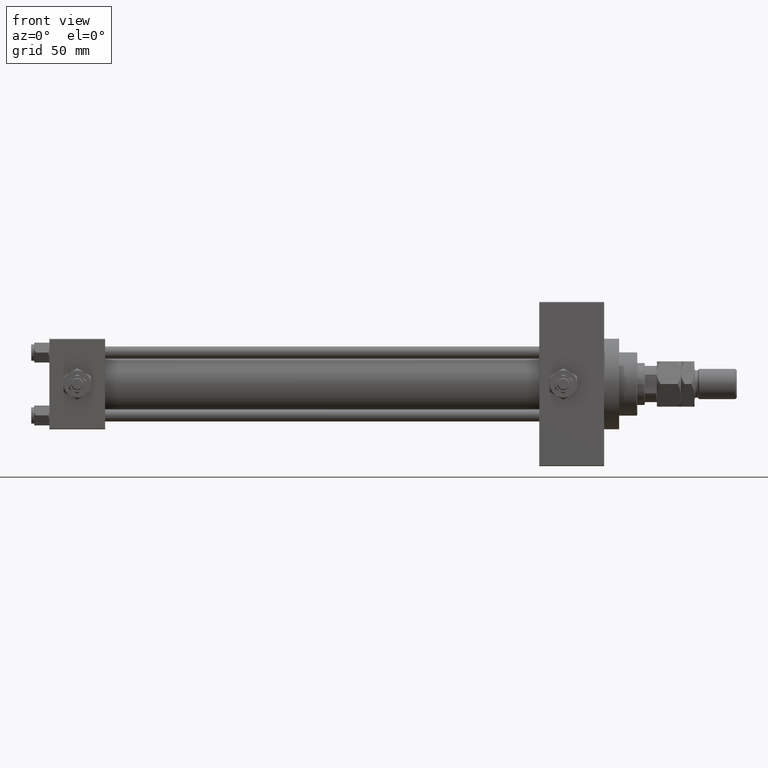
[diagram: clean part render]
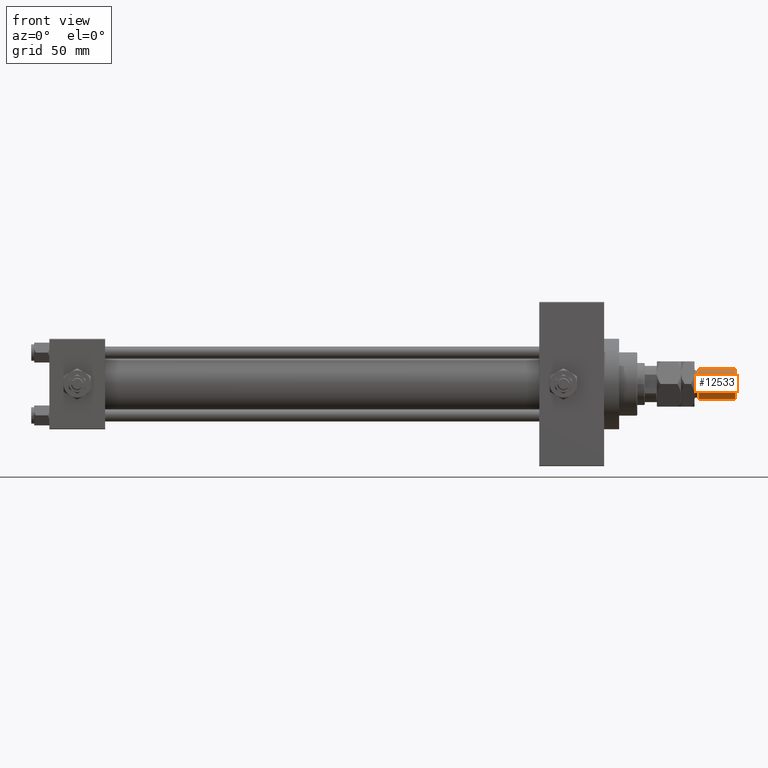
[diagram: same view with one face highlighted and labeled with its STEP entity id]
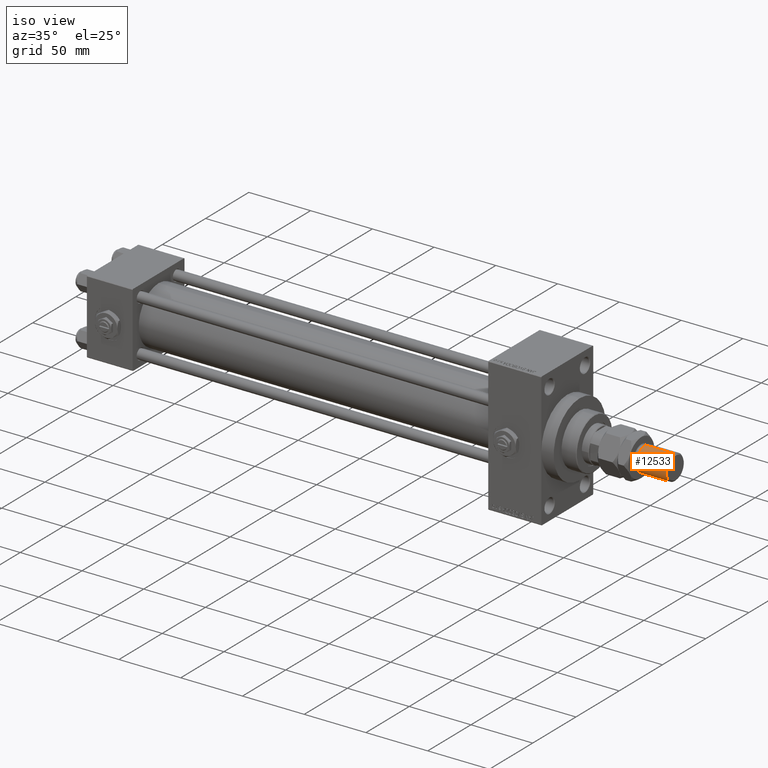
[diagram: same view with one face highlighted and labeled with its STEP entity id]
A machine part, front view. The second image highlights one B-rep face of the part: STEP entity #12533.
A second angle (iso view) of the same face is appended — the face is thin or edge-on in the first view.
In plain terms, the highlighted cylindrical surface (edge-blend (fillet) strip) has radius 10 mm, axis along (-1, -0, 0).
Its self-contained STEP definition (entity closure, byte-faithful):
#544 = VECTOR ( 'NONE', #45635, 1000.000000000000000 ) ;
#1400 = CARTESIAN_POINT ( 'NONE',  ( 0.000000000000000000, 0.000000000000000000, 53.00000000000000711 ) ) ;
#1923 = ORIENTED_EDGE ( 'NONE', *, *, #4683, .T. ) ;
#3309 = VERTEX_POINT ( 'NONE', #18035 ) ;
#3406 = DIRECTION ( 'NONE',  ( 1.000000000000000000, 0.000000000000000000, 0.000000000000000000 ) ) ;
#4420 = AXIS2_PLACEMENT_3D ( 'NONE', #10446, #6344, #38476 ) ;
#4683 = EDGE_CURVE ( 'NONE', #46548, #35385, #20016, .T. ) ;
#5234 = VERTEX_POINT ( 'NONE', #11208 ) ;
#6344 = DIRECTION ( 'NONE',  ( -0.000000000000000000, -0.000000000000000000, 1.000000000000000000 ) ) ;
#6790 = LINE ( 'NONE', #15018, #544 ) ;
#9135 = FACE_OUTER_BOUND ( 'NONE', #34720, .T. ) ;
#9337 = CIRCLE ( 'NONE', #4420, 10.00000000000000000 ) ;
#10214 = ORIENTED_EDGE ( 'NONE', *, *, #46225, .T. ) ;
#10446 = CARTESIAN_POINT ( 'NONE',  ( 0.000000000000000000, 0.000000000000000000, 28.00000000000002487 ) ) ;
#11208 = CARTESIAN_POINT ( 'NONE',  ( 10.00000000000000000, 1.224646799147353059E-15, 52.00000000000004974 ) ) ;
#12533 = ADVANCED_FACE ( 'NONE', ( #9135 ), #40498, .T. ) ;
#14732 = CARTESIAN_POINT ( 'NONE',  ( 0.000000000000000000, 0.000000000000000000, 52.00000000000004974 ) ) ;
#15018 = CARTESIAN_POINT ( 'NONE',  ( 10.00000000000000000, 1.224646799147353059E-15, 53.00000000000000711 ) ) ;
#15772 = CIRCLE ( 'NONE', #22323, 10.00000000000000000 ) ;
#16156 = DIRECTION ( 'NONE',  ( -0.000000000000000000, -0.000000000000000000, -1.000000000000000000 ) ) ;
#16758 = EDGE_CURVE ( 'NONE', #35385, #3309, #9337, .T. ) ;
#18035 = CARTESIAN_POINT ( 'NONE',  ( 10.00000000000000000, 1.224646799147353059E-15, 28.00000000000002487 ) ) ;
#18588 = DIRECTION ( 'NONE',  ( 0.000000000000000000, 0.000000000000000000, -1.000000000000000000 ) ) ;
#19309 = CARTESIAN_POINT ( 'NONE',  ( -10.00000000000000000, 0.000000000000000000, 52.00000000000004974 ) ) ;
#20016 = LINE ( 'NONE', #48045, #22964 ) ;
#22323 = AXIS2_PLACEMENT_3D ( 'NONE', #14732, #18588, #3406 ) ;
#22964 = VECTOR ( 'NONE', #16156, 1000.000000000000000 ) ;
#25068 = DIRECTION ( 'NONE',  ( -1.000000000000000000, 0.000000000000000000, 0.000000000000000000 ) ) ;
#26650 = EDGE_CURVE ( 'NONE', #5234, #3309, #6790, .T. ) ;
#29804 = ORIENTED_EDGE ( 'NONE', *, *, #26650, .F. ) ;
#30039 = CARTESIAN_POINT ( 'NONE',  ( -10.00000000000000000, 0.000000000000000000, 28.00000000000002487 ) ) ;
#33034 = DIRECTION ( 'NONE',  ( -0.000000000000000000, -0.000000000000000000, -1.000000000000000000 ) ) ;
#34720 = EDGE_LOOP ( 'NONE', ( #29804, #10214, #1923, #49328 ) ) ;
#35385 = VERTEX_POINT ( 'NONE', #30039 ) ;
#37116 = AXIS2_PLACEMENT_3D ( 'NONE', #1400, #33034, #25068 ) ;
#38476 = DIRECTION ( 'NONE',  ( 1.000000000000000000, 0.000000000000000000, 0.000000000000000000 ) ) ;
#40498 = CYLINDRICAL_SURFACE ( 'NONE', #37116, 10.00000000000000000 ) ;
#45635 = DIRECTION ( 'NONE',  ( -0.000000000000000000, -0.000000000000000000, -1.000000000000000000 ) ) ;
#46225 = EDGE_CURVE ( 'NONE', #5234, #46548, #15772, .T. ) ;
#46548 = VERTEX_POINT ( 'NONE', #19309 ) ;
#48045 = CARTESIAN_POINT ( 'NONE',  ( -10.00000000000000000, 0.000000000000000000, 53.00000000000000711 ) ) ;
#49328 = ORIENTED_EDGE ( 'NONE', *, *, #16758, .T. ) ;